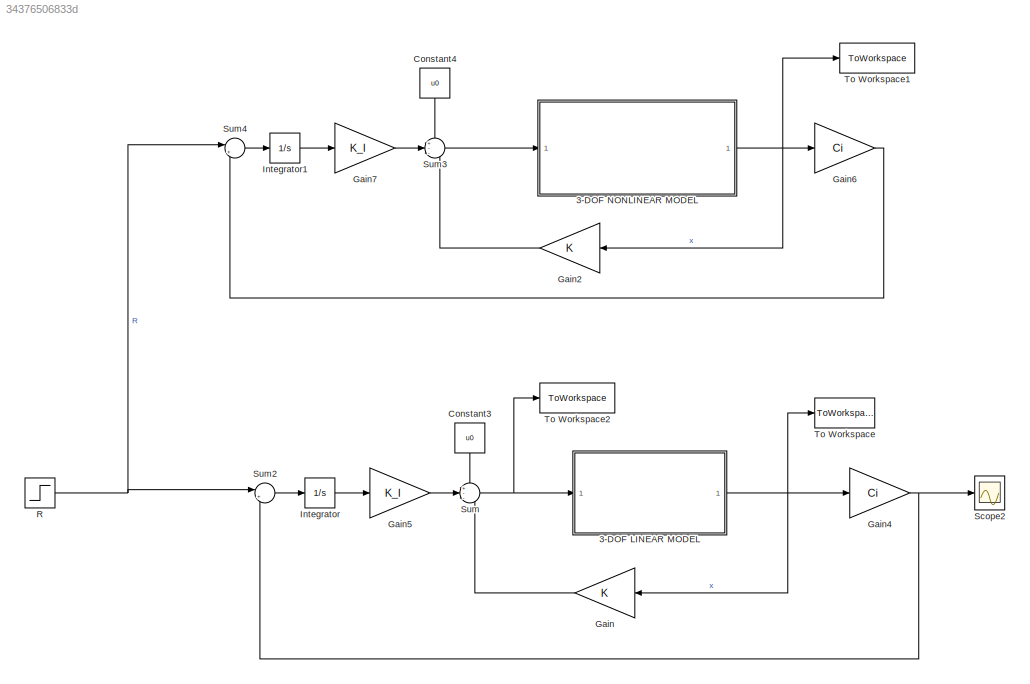
MODEL slx_34376506833d
KIND model
CONFIG AbsTol = auto
CONFIG EnableMultiTasking = off
CONFIG FixedStep = auto
CONFIG MaxStep = auto
CONFIG MinStep = auto
CONFIG RelTol = 1e-3
CONFIG SampleTimeConstraint = Unconstrained
CONFIG SolverName = VariableStepAuto
CONFIG StartTime = 0.0
CONFIG StopTime = 50
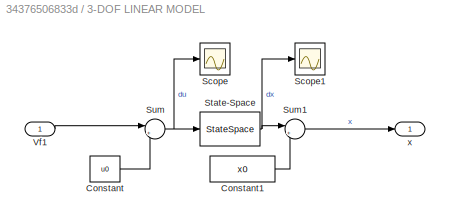
BLOCK [SubSystem] 3-DOF LINEAR MODEL
BLOCK [Constant] 3-DOF LINEAR MODEL/Constant
  Value = u0
BLOCK [Constant] 3-DOF LINEAR MODEL/Constant1
  Value = x0
BLOCK [Scope] 3-DOF LINEAR MODEL/Scope
  Floating = off
  NumInputPorts = 1
  ScopeSpecificationString = Simulink.scopes.TimeScopeBlockCfg('CurrentConfiguration', extmgr.ConfigurationSet(extmgr.Configuration('Core','General UI',true),extmgr.Configuration('Core','Source UI',true),extmgr.Configuration('Sources','WiredSimulink',true,'DataLoggingVariableName','ScopeData3'),extmgr.Configuration('Visuals','Time Domain',true,'SerializedDisplays',{struct('MinYLimReal','-10.42324','MaxYLimReal','3.62045','YLa...<+1374ch>
BLOCK [Scope] 3-DOF LINEAR MODEL/Scope1
  Floating = off
  NumInputPorts = 1
  ScopeSpecificationString = Simulink.scopes.TimeScopeBlockCfg('CurrentConfiguration', extmgr.ConfigurationSet(extmgr.Configuration('Core','General UI',true),extmgr.Configuration('Core','Source UI',true),extmgr.Configuration('Sources','WiredSimulink',true,'DataLoggingVariableName','ScopeData4'),extmgr.Configuration('Visuals','Time Domain',true),extmgr.Configuration('Tools','Plot Navigation',true),extmgr.Configuration('Tools',...<+40ch>
BLOCK [StateSpace] 3-DOF LINEAR MODEL/State-Space
  A = A
  B = B
  C = eye(size(A))
  ContinuousStateAttributes = {'eps','ro','lam','epsdot','rodot','lamdot'}
  D = zeros(size(B))
  InitialCondition = x0
BLOCK [Sum] 3-DOF LINEAR MODEL/Sum
  Inputs = |+-
BLOCK [Sum] 3-DOF LINEAR MODEL/Sum1
  Inputs = |++
BLOCK [Inport] 3-DOF LINEAR MODEL/Vf1
BLOCK [Outport] 3-DOF LINEAR MODEL/x
  VectorParamsAs1DForOutWhenUnconnected = off
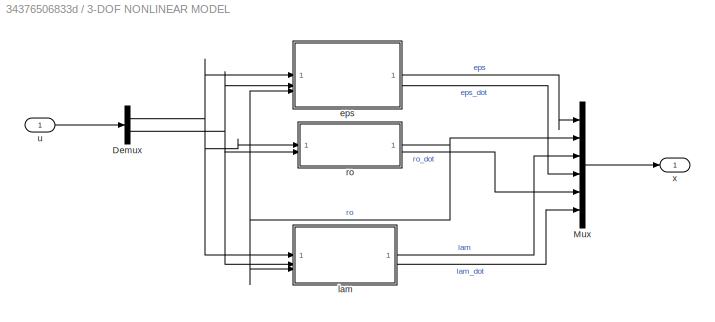
BLOCK [SubSystem] 3-DOF NONLINEAR MODEL
BLOCK [Demux] 3-DOF NONLINEAR MODEL/Demux
  Outputs = 2
BLOCK [Mux] 3-DOF NONLINEAR MODEL/Mux
  DisplayOption = bar
  Inputs = 6
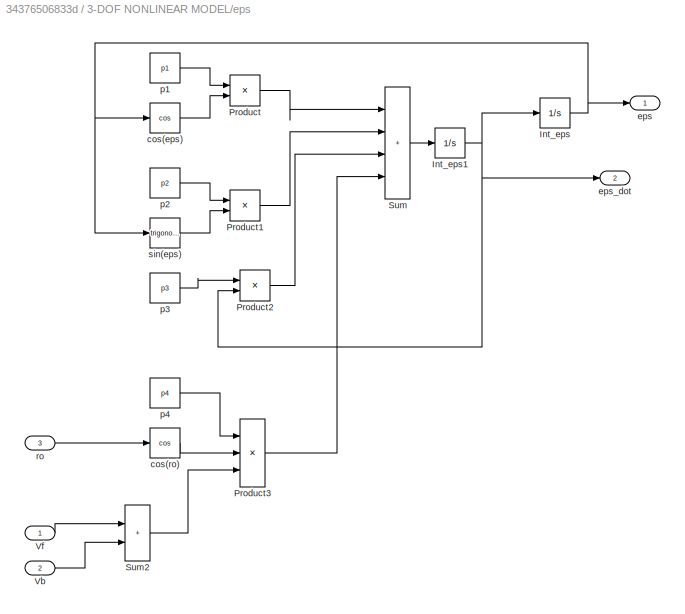
BLOCK [SubSystem] 3-DOF NONLINEAR MODEL/eps
BLOCK [Integrator] 3-DOF NONLINEAR MODEL/eps/Int_eps
  ContinuousStateAttributes = 'eps'
  InitialCondition = eps0
BLOCK [Integrator] 3-DOF NONLINEAR MODEL/eps/Int_eps1
  ContinuousStateAttributes = 'epsdot'
  InitialCondition = eps0dot
BLOCK [Product] 3-DOF NONLINEAR MODEL/eps/Product
  RndMeth = Zero
BLOCK [Product] 3-DOF NONLINEAR MODEL/eps/Product1
  RndMeth = Zero
BLOCK [Product] 3-DOF NONLINEAR MODEL/eps/Product2
  RndMeth = Zero
BLOCK [Product] 3-DOF NONLINEAR MODEL/eps/Product3
  Inputs = 3
  RndMeth = Zero
BLOCK [Sum] 3-DOF NONLINEAR MODEL/eps/Sum
  IconShape = rectangular
  Inputs = |++++
BLOCK [Sum] 3-DOF NONLINEAR MODEL/eps/Sum2
  IconShape = rectangular
  Inputs = |++
BLOCK [Inport] 3-DOF NONLINEAR MODEL/eps/Vb
  Port = 2
BLOCK [Inport] 3-DOF NONLINEAR MODEL/eps/Vf
BLOCK [Trigonometry] 3-DOF NONLINEAR MODEL/eps/cos(eps)
  Operator = cos
BLOCK [Trigonometry] 3-DOF NONLINEAR MODEL/eps/cos(ro)
  Operator = cos
BLOCK [Outport] 3-DOF NONLINEAR MODEL/eps/eps
  VectorParamsAs1DForOutWhenUnconnected = off
BLOCK [Outport] 3-DOF NONLINEAR MODEL/eps/eps_dot
  Port = 2
  VectorParamsAs1DForOutWhenUnconnected = off
BLOCK [Constant] 3-DOF NONLINEAR MODEL/eps/p1
  Value = p1
BLOCK [Constant] 3-DOF NONLINEAR MODEL/eps/p2
  Value = p2
BLOCK [Constant] 3-DOF NONLINEAR MODEL/eps/p3
  Value = p3
BLOCK [Constant] 3-DOF NONLINEAR MODEL/eps/p4
  Value = p4
BLOCK [Inport] 3-DOF NONLINEAR MODEL/eps/ro
  Port = 3
BLOCK [Trigonometry] 3-DOF NONLINEAR MODEL/eps/sin(eps)
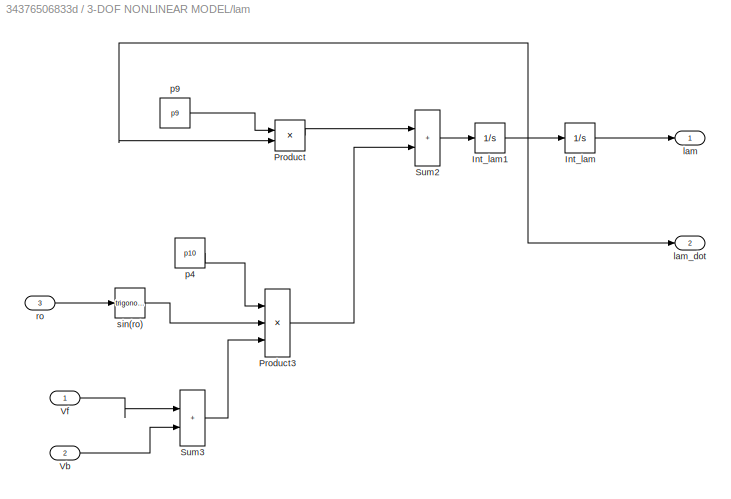
BLOCK [SubSystem] 3-DOF NONLINEAR MODEL/lam
BLOCK [Integrator] 3-DOF NONLINEAR MODEL/lam/Int_lam
  ContinuousStateAttributes = 'lam'
  InitialCondition = lam0
BLOCK [Integrator] 3-DOF NONLINEAR MODEL/lam/Int_lam1
  ContinuousStateAttributes = 'lamdot'
  InitialCondition = lam0dot
BLOCK [Product] 3-DOF NONLINEAR MODEL/lam/Product
  RndMeth = Zero
BLOCK [Product] 3-DOF NONLINEAR MODEL/lam/Product3
  Inputs = 3
  RndMeth = Zero
BLOCK [Sum] 3-DOF NONLINEAR MODEL/lam/Sum2
  IconShape = rectangular
  Inputs = |++
BLOCK [Sum] 3-DOF NONLINEAR MODEL/lam/Sum3
  IconShape = rectangular
  Inputs = |++
BLOCK [Inport] 3-DOF NONLINEAR MODEL/lam/Vb
  Port = 2
BLOCK [Inport] 3-DOF NONLINEAR MODEL/lam/Vf
BLOCK [Outport] 3-DOF NONLINEAR MODEL/lam/lam
  VectorParamsAs1DForOutWhenUnconnected = off
BLOCK [Outport] 3-DOF NONLINEAR MODEL/lam/lam_dot
  Port = 2
  VectorParamsAs1DForOutWhenUnconnected = off
BLOCK [Constant] 3-DOF NONLINEAR MODEL/lam/p4
  Value = p10
BLOCK [Constant] 3-DOF NONLINEAR MODEL/lam/p9
  Value = p9
BLOCK [Inport] 3-DOF NONLINEAR MODEL/lam/ro
  Port = 3
BLOCK [Trigonometry] 3-DOF NONLINEAR MODEL/lam/sin(ro)
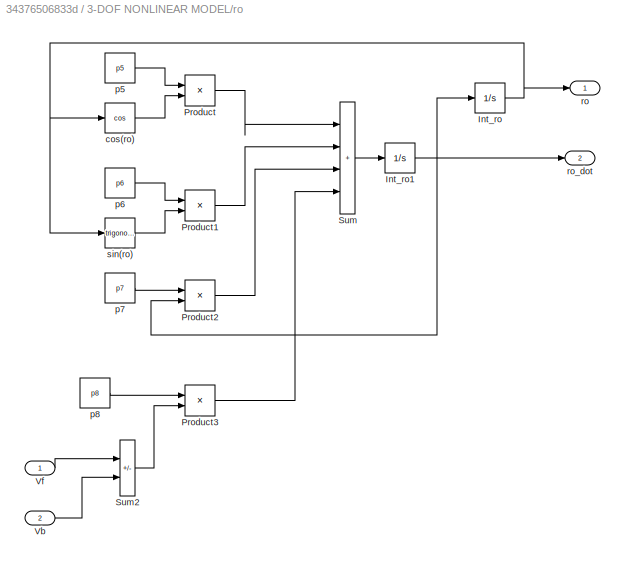
BLOCK [SubSystem] 3-DOF NONLINEAR MODEL/ro
BLOCK [Integrator] 3-DOF NONLINEAR MODEL/ro/Int_ro
  ContinuousStateAttributes = 'ro'
  InitialCondition = ro0
BLOCK [Integrator] 3-DOF NONLINEAR MODEL/ro/Int_ro1
  ContinuousStateAttributes = 'rodot'
  InitialCondition = ro0dot
BLOCK [Product] 3-DOF NONLINEAR MODEL/ro/Product
  RndMeth = Zero
BLOCK [Product] 3-DOF NONLINEAR MODEL/ro/Product1
  RndMeth = Zero
BLOCK [Product] 3-DOF NONLINEAR MODEL/ro/Product2
  RndMeth = Zero
BLOCK [Product] 3-DOF NONLINEAR MODEL/ro/Product3
  RndMeth = Zero
BLOCK [Sum] 3-DOF NONLINEAR MODEL/ro/Sum
  IconShape = rectangular
  Inputs = |++++
BLOCK [Sum] 3-DOF NONLINEAR MODEL/ro/Sum2
  IconShape = rectangular
  Inputs = |+-
BLOCK [Inport] 3-DOF NONLINEAR MODEL/ro/Vb
  Port = 2
BLOCK [Inport] 3-DOF NONLINEAR MODEL/ro/Vf
BLOCK [Trigonometry] 3-DOF NONLINEAR MODEL/ro/cos(ro)
  Operator = cos
BLOCK [Constant] 3-DOF NONLINEAR MODEL/ro/p5
  Value = p5
BLOCK [Constant] 3-DOF NONLINEAR MODEL/ro/p6
  Value = p6
BLOCK [Constant] 3-DOF NONLINEAR MODEL/ro/p7
  Value = p7
BLOCK [Constant] 3-DOF NONLINEAR MODEL/ro/p8
  Value = p8
BLOCK [Outport] 3-DOF NONLINEAR MODEL/ro/ro
  VectorParamsAs1DForOutWhenUnconnected = off
BLOCK [Outport] 3-DOF NONLINEAR MODEL/ro/ro_dot
  Port = 2
  VectorParamsAs1DForOutWhenUnconnected = off
BLOCK [Trigonometry] 3-DOF NONLINEAR MODEL/ro/sin(ro)
BLOCK [Inport] 3-DOF NONLINEAR MODEL/u
BLOCK [Outport] 3-DOF NONLINEAR MODEL/x
  VectorParamsAs1DForOutWhenUnconnected = off
BLOCK [Constant] Constant3
  NameLocation = left
  Value = u0
BLOCK [Constant] Constant4
  NameLocation = left
  Value = u0
BLOCK [Gain] Gain
  Gain = K
  Multiplication = Matrix(K*u)
  NameLocation = top
BLOCK [Gain] Gain2
  Gain = K
  Multiplication = Matrix(K*u)
  NameLocation = top
BLOCK [Gain] Gain4
  Gain = Ci
  Multiplication = Matrix(K*u)
BLOCK [Gain] Gain5
  Gain = K_I
  Multiplication = Matrix(K*u)
BLOCK [Gain] Gain6
  Gain = Ci
  Multiplication = Matrix(K*u)
BLOCK [Gain] Gain7
  Gain = K_I
  Multiplication = Matrix(K*u)
BLOCK [Integrator] Integrator
BLOCK [Integrator] Integrator1
BLOCK [Step] R
  After = R
  SampleTime = 0
  Time = t_R
BLOCK [Scope] Scope2
  Floating = off
  NumInputPorts = 1
  ScopeSpecificationString = Simulink.scopes.TimeScopeBlockCfg('CurrentConfiguration', extmgr.ConfigurationSet(extmgr.Configuration('Core','General UI',true),extmgr.Configuration('Core','Source UI',true),extmgr.Configuration('Sources','WiredSimulink',true,'DataLoggingVariableName','ScopeData1'),extmgr.Configuration('Visuals','Time Domain',true,'SerializedDisplays',{struct('MinYLimReal','-0.02104','MaxYLimReal','0.05633','YLab...<+1428ch>
BLOCK [Sum] Sum
  Inputs = +--
BLOCK [Sum] Sum2
  Inputs = |+-
BLOCK [Sum] Sum3
  Inputs = +--
BLOCK [Sum] Sum4
  Inputs = |+-
BLOCK [ToWorkspace] To Workspace
  FixptAsFi = on
  MaxDataPoints = inf
  SampleTime = -1
  SaveFormat = Timeseries
  VariableName = sim_x_lin
BLOCK [ToWorkspace] To Workspace1
  FixptAsFi = on
  MaxDataPoints = inf
  SampleTime = -1
  SaveFormat = Timeseries
  VariableName = sim_x_nonlin
BLOCK [ToWorkspace] To Workspace2
  FixptAsFi = on
  MaxDataPoints = inf
  SampleTime = -1
  SaveFormat = Timeseries
  VariableName = sim_u
LINE 3-DOF LINEAR MODEL/Constant1:1 -> 3-DOF LINEAR MODEL/Sum1:2
LINE 3-DOF LINEAR MODEL/Constant:1 -> 3-DOF LINEAR MODEL/Sum:2
NET 3-DOF LINEAR MODEL/State-Space:1 -> 3-DOF LINEAR MODEL/Scope1:1, 3-DOF LINEAR MODEL/Sum1:1
LINE 3-DOF LINEAR MODEL/Sum1:1 -> 3-DOF LINEAR MODEL/x:1
NET 3-DOF LINEAR MODEL/Sum:1 -> 3-DOF LINEAR MODEL/Scope:1, 3-DOF LINEAR MODEL/State-Space:1
LINE 3-DOF LINEAR MODEL/Vf1:1 -> 3-DOF LINEAR MODEL/Sum:1
NET 3-DOF LINEAR MODEL:1 -> Gain4:1, Gain:1, To Workspace:1
NET 3-DOF NONLINEAR MODEL/Demux:1 -> 3-DOF NONLINEAR MODEL/eps:1, 3-DOF NONLINEAR MODEL/lam:1, 3-DOF NONLINEAR MODEL/ro:1
NET 3-DOF NONLINEAR MODEL/Demux:2 -> 3-DOF NONLINEAR MODEL/eps:2, 3-DOF NONLINEAR MODEL/lam:2, 3-DOF NONLINEAR MODEL/ro:2
LINE 3-DOF NONLINEAR MODEL/Mux:1 -> 3-DOF NONLINEAR MODEL/x:1
NET 3-DOF NONLINEAR MODEL/eps/Int_eps1:1 -> 3-DOF NONLINEAR MODEL/eps/Int_eps:1, 3-DOF NONLINEAR MODEL/eps/Product2:2, 3-DOF NONLINEAR MODEL/eps/eps_dot:1
NET 3-DOF NONLINEAR MODEL/eps/Int_eps:1 -> 3-DOF NONLINEAR MODEL/eps/cos(eps):1, 3-DOF NONLINEAR MODEL/eps/eps:1, 3-DOF NONLINEAR MODEL/eps/sin(eps):1
LINE 3-DOF NONLINEAR MODEL/eps/Product1:1 -> 3-DOF NONLINEAR MODEL/eps/Sum:2
LINE 3-DOF NONLINEAR MODEL/eps/Product2:1 -> 3-DOF NONLINEAR MODEL/eps/Sum:3
LINE 3-DOF NONLINEAR MODEL/eps/Product3:1 -> 3-DOF NONLINEAR MODEL/eps/Sum:4
LINE 3-DOF NONLINEAR MODEL/eps/Product:1 -> 3-DOF NONLINEAR MODEL/eps/Sum:1
LINE 3-DOF NONLINEAR MODEL/eps/Sum2:1 -> 3-DOF NONLINEAR MODEL/eps/Product3:3
LINE 3-DOF NONLINEAR MODEL/eps/Sum:1 -> 3-DOF NONLINEAR MODEL/eps/Int_eps1:1
LINE 3-DOF NONLINEAR MODEL/eps/Vb:1 -> 3-DOF NONLINEAR MODEL/eps/Sum2:2
LINE 3-DOF NONLINEAR MODEL/eps/Vf:1 -> 3-DOF NONLINEAR MODEL/eps/Sum2:1
LINE 3-DOF NONLINEAR MODEL/eps/cos(eps):1 -> 3-DOF NONLINEAR MODEL/eps/Product:2
LINE 3-DOF NONLINEAR MODEL/eps/cos(ro):1 -> 3-DOF NONLINEAR MODEL/eps/Product3:2
LINE 3-DOF NONLINEAR MODEL/eps/p1:1 -> 3-DOF NONLINEAR MODEL/eps/Product:1
LINE 3-DOF NONLINEAR MODEL/eps/p2:1 -> 3-DOF NONLINEAR MODEL/eps/Product1:1
LINE 3-DOF NONLINEAR MODEL/eps/p3:1 -> 3-DOF NONLINEAR MODEL/eps/Product2:1
LINE 3-DOF NONLINEAR MODEL/eps/p4:1 -> 3-DOF NONLINEAR MODEL/eps/Product3:1
LINE 3-DOF NONLINEAR MODEL/eps/ro:1 -> 3-DOF NONLINEAR MODEL/eps/cos(ro):1
LINE 3-DOF NONLINEAR MODEL/eps/sin(eps):1 -> 3-DOF NONLINEAR MODEL/eps/Product1:2
LINE 3-DOF NONLINEAR MODEL/eps:1 -> 3-DOF NONLINEAR MODEL/Mux:1
LINE 3-DOF NONLINEAR MODEL/eps:2 -> 3-DOF NONLINEAR MODEL/Mux:4
NET 3-DOF NONLINEAR MODEL/lam/Int_lam1:1 -> 3-DOF NONLINEAR MODEL/lam/Int_lam:1, 3-DOF NONLINEAR MODEL/lam/Product:2, 3-DOF NONLINEAR MODEL/lam/lam_dot:1
LINE 3-DOF NONLINEAR MODEL/lam/Int_lam:1 -> 3-DOF NONLINEAR MODEL/lam/lam:1
LINE 3-DOF NONLINEAR MODEL/lam/Product3:1 -> 3-DOF NONLINEAR MODEL/lam/Sum2:2
LINE 3-DOF NONLINEAR MODEL/lam/Product:1 -> 3-DOF NONLINEAR MODEL/lam/Sum2:1
LINE 3-DOF NONLINEAR MODEL/lam/Sum2:1 -> 3-DOF NONLINEAR MODEL/lam/Int_lam1:1
LINE 3-DOF NONLINEAR MODEL/lam/Sum3:1 -> 3-DOF NONLINEAR MODEL/lam/Product3:3
LINE 3-DOF NONLINEAR MODEL/lam/Vb:1 -> 3-DOF NONLINEAR MODEL/lam/Sum3:2
LINE 3-DOF NONLINEAR MODEL/lam/Vf:1 -> 3-DOF NONLINEAR MODEL/lam/Sum3:1
LINE 3-DOF NONLINEAR MODEL/lam/p4:1 -> 3-DOF NONLINEAR MODEL/lam/Product3:1
LINE 3-DOF NONLINEAR MODEL/lam/p9:1 -> 3-DOF NONLINEAR MODEL/lam/Product:1
LINE 3-DOF NONLINEAR MODEL/lam/ro:1 -> 3-DOF NONLINEAR MODEL/lam/sin(ro):1
LINE 3-DOF NONLINEAR MODEL/lam/sin(ro):1 -> 3-DOF NONLINEAR MODEL/lam/Product3:2
LINE 3-DOF NONLINEAR MODEL/lam:1 -> 3-DOF NONLINEAR MODEL/Mux:3
LINE 3-DOF NONLINEAR MODEL/lam:2 -> 3-DOF NONLINEAR MODEL/Mux:6
NET 3-DOF NONLINEAR MODEL/ro/Int_ro1:1 -> 3-DOF NONLINEAR MODEL/ro/Int_ro:1, 3-DOF NONLINEAR MODEL/ro/Product2:2, 3-DOF NONLINEAR MODEL/ro/ro_dot:1
NET 3-DOF NONLINEAR MODEL/ro/Int_ro:1 -> 3-DOF NONLINEAR MODEL/ro/cos(ro):1, 3-DOF NONLINEAR MODEL/ro/ro:1, 3-DOF NONLINEAR MODEL/ro/sin(ro):1
LINE 3-DOF NONLINEAR MODEL/ro/Product1:1 -> 3-DOF NONLINEAR MODEL/ro/Sum:2
LINE 3-DOF NONLINEAR MODEL/ro/Product2:1 -> 3-DOF NONLINEAR MODEL/ro/Sum:3
LINE 3-DOF NONLINEAR MODEL/ro/Product3:1 -> 3-DOF NONLINEAR MODEL/ro/Sum:4
LINE 3-DOF NONLINEAR MODEL/ro/Product:1 -> 3-DOF NONLINEAR MODEL/ro/Sum:1
LINE 3-DOF NONLINEAR MODEL/ro/Sum2:1 -> 3-DOF NONLINEAR MODEL/ro/Product3:2
LINE 3-DOF NONLINEAR MODEL/ro/Sum:1 -> 3-DOF NONLINEAR MODEL/ro/Int_ro1:1
LINE 3-DOF NONLINEAR MODEL/ro/Vb:1 -> 3-DOF NONLINEAR MODEL/ro/Sum2:2
LINE 3-DOF NONLINEAR MODEL/ro/Vf:1 -> 3-DOF NONLINEAR MODEL/ro/Sum2:1
LINE 3-DOF NONLINEAR MODEL/ro/cos(ro):1 -> 3-DOF NONLINEAR MODEL/ro/Product:2
LINE 3-DOF NONLINEAR MODEL/ro/p5:1 -> 3-DOF NONLINEAR MODEL/ro/Product:1
LINE 3-DOF NONLINEAR MODEL/ro/p6:1 -> 3-DOF NONLINEAR MODEL/ro/Product1:1
LINE 3-DOF NONLINEAR MODEL/ro/p7:1 -> 3-DOF NONLINEAR MODEL/ro/Product2:1
LINE 3-DOF NONLINEAR MODEL/ro/p8:1 -> 3-DOF NONLINEAR MODEL/ro/Product3:1
LINE 3-DOF NONLINEAR MODEL/ro/sin(ro):1 -> 3-DOF NONLINEAR MODEL/ro/Product1:2
NET 3-DOF NONLINEAR MODEL/ro:1 -> 3-DOF NONLINEAR MODEL/Mux:2, 3-DOF NONLINEAR MODEL/eps:3, 3-DOF NONLINEAR MODEL/lam:3
LINE 3-DOF NONLINEAR MODEL/ro:2 -> 3-DOF NONLINEAR MODEL/Mux:5
LINE 3-DOF NONLINEAR MODEL/u:1 -> 3-DOF NONLINEAR MODEL/Demux:1
NET 3-DOF NONLINEAR MODEL:1 -> Gain2:1, Gain6:1, To Workspace1:1
LINE Constant3:1 -> Sum:1
LINE Constant4:1 -> Sum3:1
LINE Gain2:1 -> Sum3:3
NET Gain4:1 -> Scope2:1, Sum2:2
LINE Gain5:1 -> Sum:2
LINE Gain6:1 -> Sum4:2
LINE Gain7:1 -> Sum3:2
LINE Gain:1 -> Sum:3
LINE Integrator1:1 -> Gain7:1
LINE Integrator:1 -> Gain5:1
NET R:1 -> Sum2:1, Sum4:1
LINE Sum2:1 -> Integrator:1
LINE Sum3:1 -> 3-DOF NONLINEAR MODEL:1
LINE Sum4:1 -> Integrator1:1
NET Sum:1 -> 3-DOF LINEAR MODEL:1, To Workspace2:1
note: NET lines group one-source signal fan-out (src -> all destinations, sorted); 1:1 wires keep LINE
